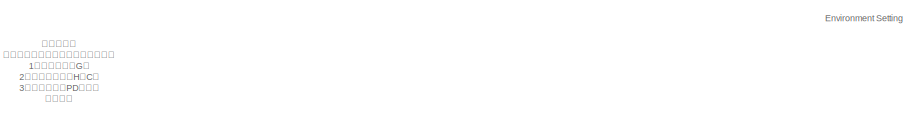
[diagram: root canvas - part 1/5, top left region]
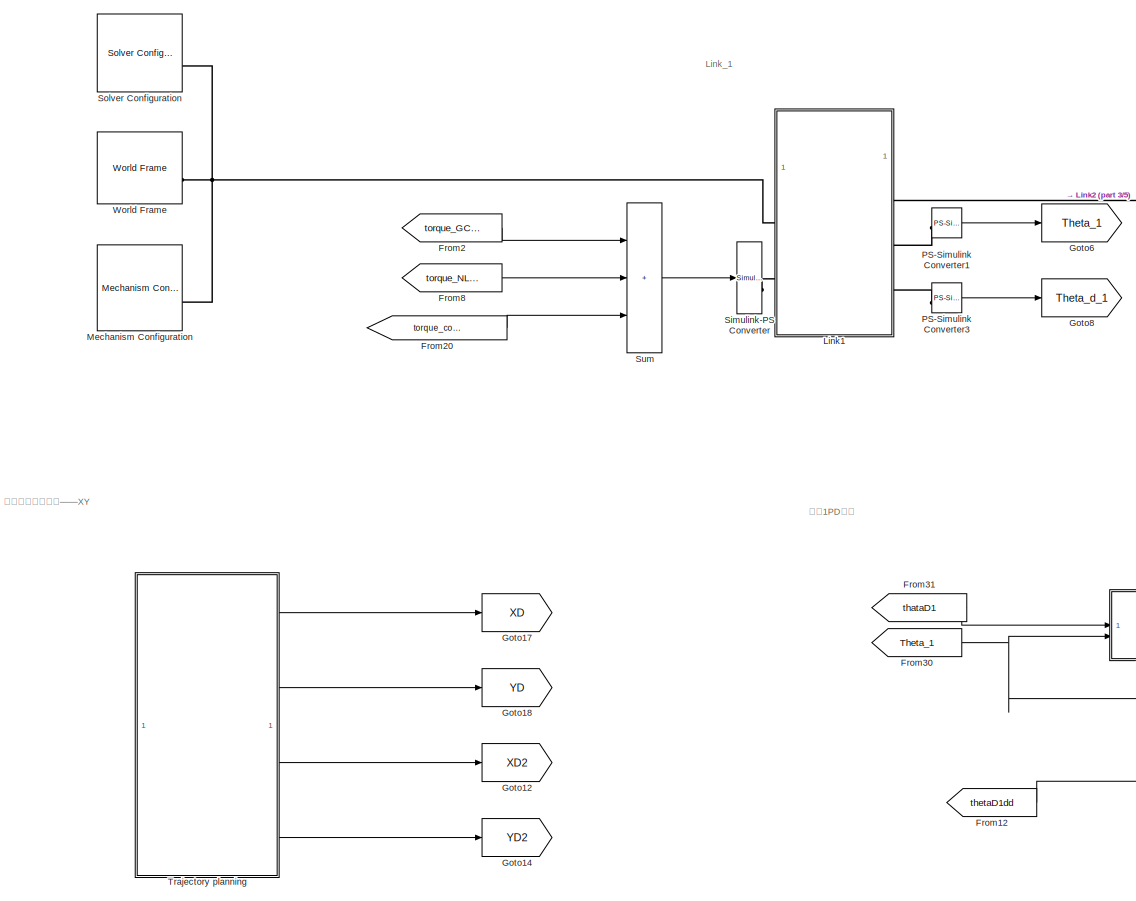
[diagram: root canvas - part 2/5, top center region]
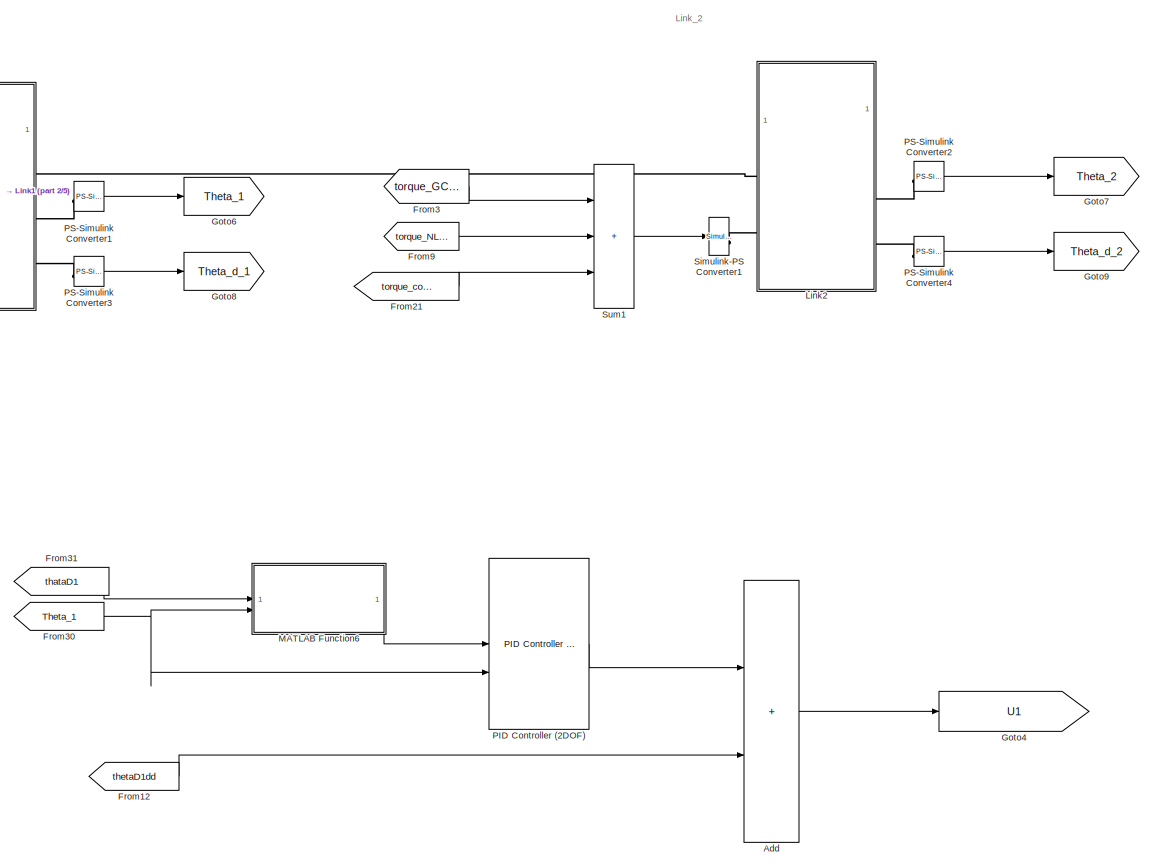
[diagram: root canvas - part 3/5, top right region]
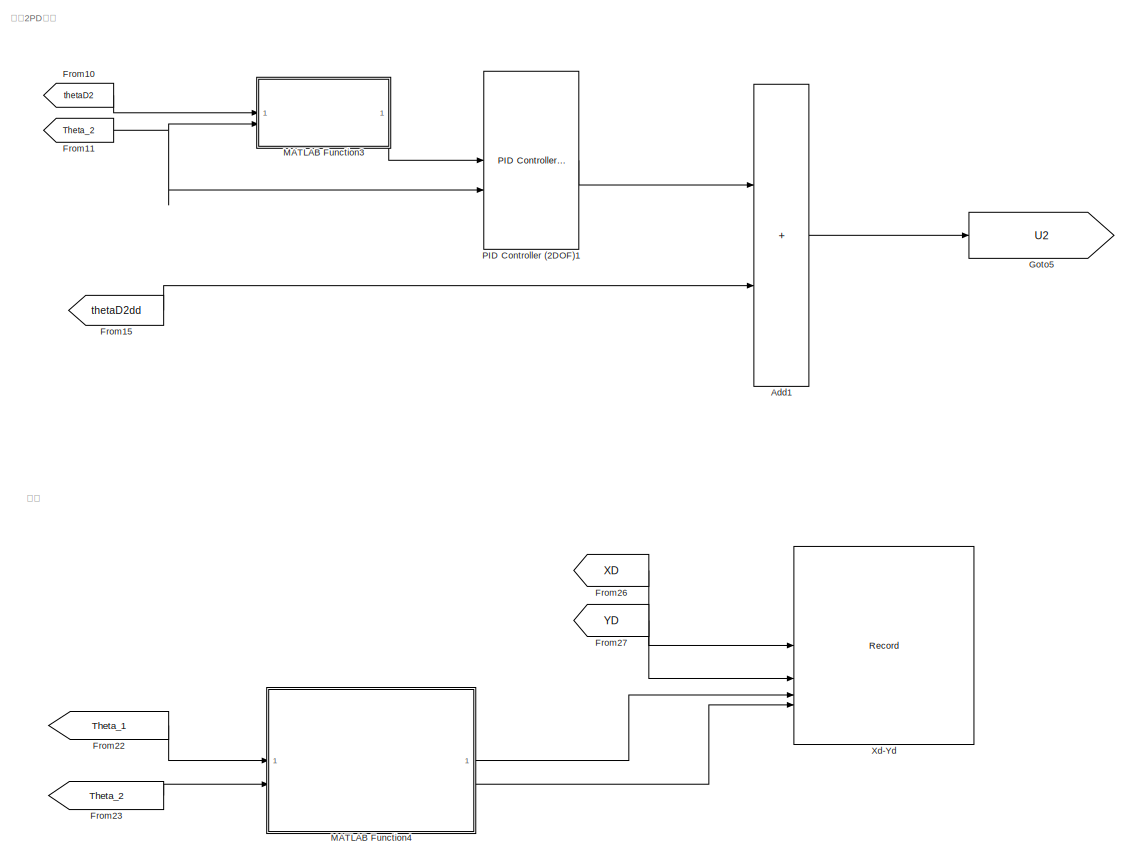
[diagram: root canvas - part 4/5, middle right region]
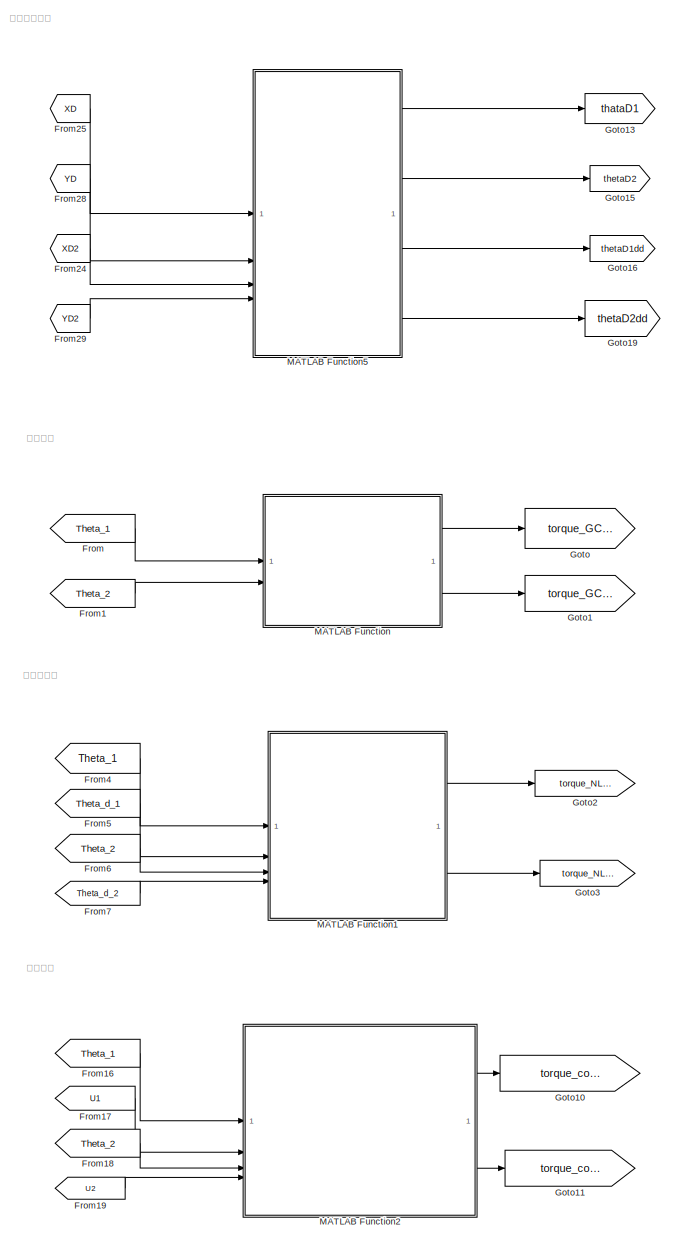
[diagram: root canvas - part 5/5, bottom center region]
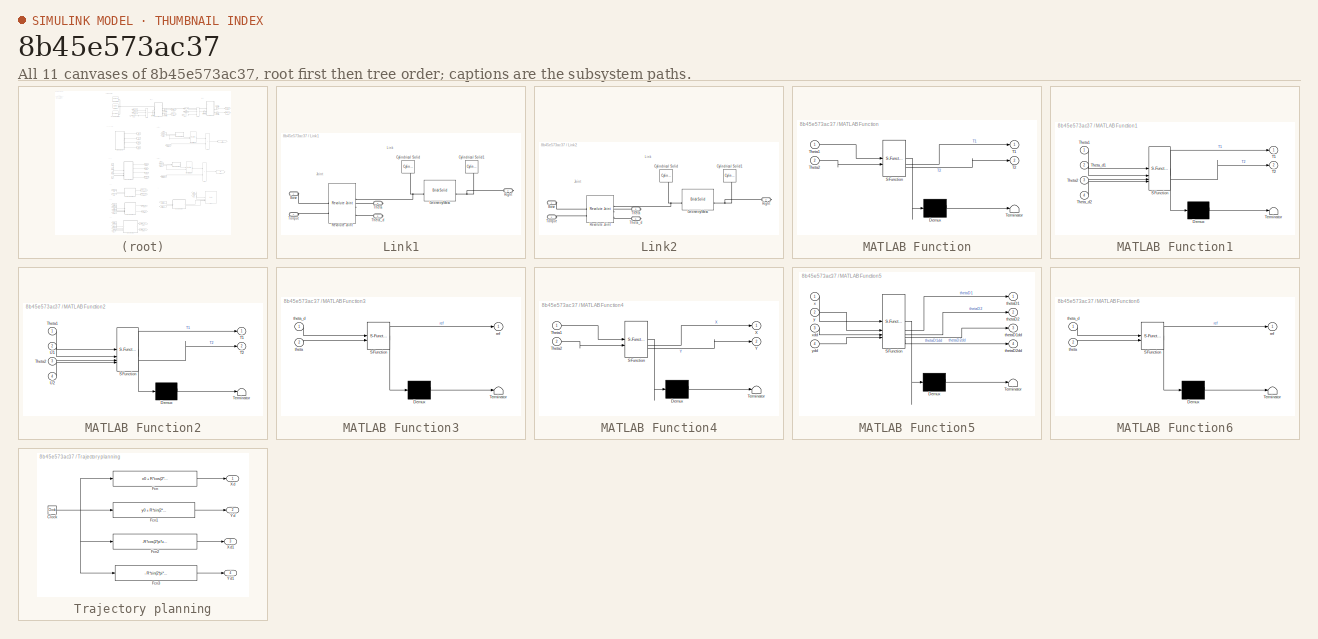
[diagram: thumbnail index - all 11 canvases of the model, root first then tree order]
MODEL slx_8b45e573ac37
KIND model
CONFIG AbsTol = auto
CONFIG EnableMultiTasking = off
CONFIG FixedStep = auto
CONFIG MaxStep = auto
CONFIG MinStep = auto
CONFIG RelTol = 1e-3
CONFIG SampleTimeConstraint = Unconstrained
CONFIG SolverName = VariableStepAuto
CONFIG StartTime = 0.0
CONFIG StopTime = 10
BLOCK [Sum] Add
  IconShape = rectangular
BLOCK [Sum] Add1
  IconShape = rectangular
BLOCK [From] From
  GotoTag = Theta_1
BLOCK [From] From1
  GotoTag = Theta_2
BLOCK [From] From10
  GotoTag = thetaD2
BLOCK [From] From11
  GotoTag = Theta_2
BLOCK [From] From12
  GotoTag = thetaD1dd
BLOCK [From] From15
  GotoTag = thetaD2dd
BLOCK [From] From16
  GotoTag = Theta_1
BLOCK [From] From17
  GotoTag = U1
BLOCK [From] From18
  GotoTag = Theta_2
BLOCK [From] From19
  GotoTag = U2
BLOCK [From] From2
  GotoTag = torque_GC_1
BLOCK [From] From20
  GotoTag = torque_controller_1
BLOCK [From] From21
  GotoTag = torque_controller_2
BLOCK [From] From22
  GotoTag = Theta_1
BLOCK [From] From23
  GotoTag = Theta_2
BLOCK [From] From24
  GotoTag = XD2
BLOCK [From] From25
  GotoTag = XD
BLOCK [From] From26
  GotoTag = XD
BLOCK [From] From27
  GotoTag = YD
BLOCK [From] From28
  GotoTag = YD
BLOCK [From] From29
  GotoTag = YD2
BLOCK [From] From3
  GotoTag = torque_GC_2
BLOCK [From] From30
  GotoTag = Theta_1
BLOCK [From] From31
  GotoTag = thataD1
BLOCK [From] From4
  GotoTag = Theta_1
BLOCK [From] From5
  GotoTag = Theta_d_1
BLOCK [From] From6
  GotoTag = Theta_2
BLOCK [From] From7
  GotoTag = Theta_d_2
BLOCK [From] From8
  GotoTag = torque_NL_1
BLOCK [From] From9
  GotoTag = torque_NL_2
BLOCK [Goto] Goto
  GotoTag = torque_GC_1
BLOCK [Goto] Goto1
  GotoTag = torque_GC_2
BLOCK [Goto] Goto10
  GotoTag = torque_controller_1
BLOCK [Goto] Goto11
  GotoTag = torque_controller_2
BLOCK [Goto] Goto12
  GotoTag = XD2
BLOCK [Goto] Goto13
  GotoTag = thataD1
BLOCK [Goto] Goto14
  GotoTag = YD2
BLOCK [Goto] Goto15
  GotoTag = thetaD2
BLOCK [Goto] Goto16
  GotoTag = thetaD1dd
BLOCK [Goto] Goto17
  GotoTag = XD
BLOCK [Goto] Goto18
  GotoTag = YD
BLOCK [Goto] Goto19
  GotoTag = thetaD2dd
BLOCK [Goto] Goto2
  GotoTag = torque_NL_1
BLOCK [Goto] Goto3
  GotoTag = torque_NL_2
BLOCK [Goto] Goto4
  GotoTag = U1
BLOCK [Goto] Goto5
  GotoTag = U2
BLOCK [Goto] Goto6
  GotoTag = Theta_1
BLOCK [Goto] Goto7
  GotoTag = Theta_2
BLOCK [Goto] Goto8
  GotoTag = Theta_d_1
BLOCK [Goto] Goto9
  GotoTag = Theta_d_2
BLOCK [SubSystem] Link1
BLOCK [PMIOPort] Link1/Base
  Side = Left
BLOCK [Reference] Link1/Cylindrical Solid  REF=sm_lib/Body Elements/Cylindrical Solid
  NameLocation = left
  SourceBlock = sm_lib/Body Elements/Cylindrical Solid
  SourceType = Cylindrical Solid
BLOCK [Reference] Link1/Cylindrical Solid1  REF=sm_lib/Body Elements/Cylindrical Solid
  NameLocation = left
  SourceBlock = sm_lib/Body Elements/Cylindrical Solid
  SourceType = Cylindrical Solid
BLOCK [Reference] Link1/Geometry//Mass  REF=sm_lib/Body Elements/Brick Solid
  SourceBlock = sm_lib/Body Elements/Brick Solid
  SourceType = Brick Solid
BLOCK [Reference] Link1/Revolute Joint  REF=sm_lib/Joints/Revolute Joint
  SourceBlock = sm_lib/Joints/Revolute Joint
  SourceType = Revolute Joint
BLOCK [PMIOPort] Link1/Right
  Port = 2
  Side = Right
BLOCK [PMIOPort] Link1/Theta
  Port = 3
  Side = Right
BLOCK [PMIOPort] Link1/Theta_d
  Port = 5
  Side = Right
BLOCK [PMIOPort] Link1/Torque
  Port = 4
  Side = Left
BLOCK [SubSystem] Link2
BLOCK [PMIOPort] Link2/Base
  Side = Left
BLOCK [Reference] Link2/Cylindrical Solid  REF=sm_lib/Body Elements/Cylindrical Solid
  NameLocation = left
  SourceBlock = sm_lib/Body Elements/Cylindrical Solid
  SourceType = Cylindrical Solid
BLOCK [Reference] Link2/Cylindrical Solid1  REF=sm_lib/Body Elements/Cylindrical Solid
  NameLocation = left
  SourceBlock = sm_lib/Body Elements/Cylindrical Solid
  SourceType = Cylindrical Solid
BLOCK [Reference] Link2/Geometry//Mass  REF=sm_lib/Body Elements/Brick Solid
  SourceBlock = sm_lib/Body Elements/Brick Solid
  SourceType = Brick Solid
BLOCK [Reference] Link2/Revolute Joint  REF=sm_lib/Joints/Revolute Joint
  SourceBlock = sm_lib/Joints/Revolute Joint
  SourceType = Revolute Joint
BLOCK [PMIOPort] Link2/Right
  Port = 2
  Side = Right
BLOCK [PMIOPort] Link2/Theta
  Port = 3
  Side = Right
BLOCK [PMIOPort] Link2/Theta_d
  Port = 5
  Side = Right
BLOCK [PMIOPort] Link2/Torque
  Port = 4
  Side = Left
BLOCK [SubSystem] MATLAB Function
  ErrorFcn = Stateflow.Translate.translate
  LibrarySourceBlock = simulink/User-Defined\nFunctions/MATLAB Function
  PermitHierarchicalResolution = ExplicitOnly
  SFBlockType = MATLAB Function
  TreatAsAtomicUnit = on
BLOCK [Demux] MATLAB Function/ Demux 
  Outputs = 1
BLOCK [S-Function] MATLAB Function/ SFunction 
  EnableBusSupport = on
  FunctionName = sf_sfun
  PortCounts = [2 3]
  SFcnIsStateOwnerBlock = off
  SFunctionDeploymentMode = off
  Tag = Stateflow S-Function 2
BLOCK [Terminator] MATLAB Function/ Terminator 
BLOCK [Outport] MATLAB Function/T1
BLOCK [Outport] MATLAB Function/T2
  Port = 2
BLOCK [Inport] MATLAB Function/Theta1
BLOCK [Inport] MATLAB Function/Theta2
  Port = 2
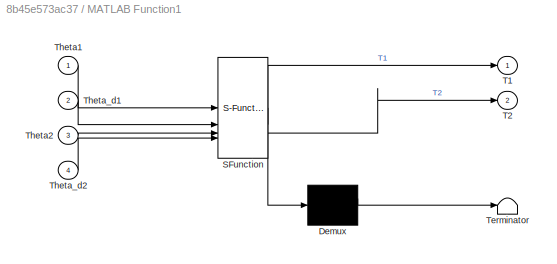
BLOCK [SubSystem] MATLAB Function1
  ErrorFcn = Stateflow.Translate.translate
  LibrarySourceBlock = simulink/User-Defined\nFunctions/MATLAB Function
  PermitHierarchicalResolution = ExplicitOnly
  SFBlockType = MATLAB Function
  TreatAsAtomicUnit = on
BLOCK [Demux] MATLAB Function1/ Demux 
  Outputs = 1
BLOCK [S-Function] MATLAB Function1/ SFunction 
  EnableBusSupport = on
  FunctionName = sf_sfun
  PortCounts = [4 3]
  SFcnIsStateOwnerBlock = off
  SFunctionDeploymentMode = off
  Tag = Stateflow S-Function 1
BLOCK [Terminator] MATLAB Function1/ Terminator 
BLOCK [Outport] MATLAB Function1/T1
BLOCK [Outport] MATLAB Function1/T2
  Port = 2
BLOCK [Inport] MATLAB Function1/Theta1
BLOCK [Inport] MATLAB Function1/Theta2
  Port = 3
BLOCK [Inport] MATLAB Function1/Theta_d1
  Port = 2
BLOCK [Inport] MATLAB Function1/Theta_d2
  Port = 4
BLOCK [SubSystem] MATLAB Function2
  ErrorFcn = Stateflow.Translate.translate
  LibrarySourceBlock = simulink/User-Defined\nFunctions/MATLAB Function
  PermitHierarchicalResolution = ExplicitOnly
  SFBlockType = MATLAB Function
  TreatAsAtomicUnit = on
BLOCK [Demux] MATLAB Function2/ Demux 
  Outputs = 1
BLOCK [S-Function] MATLAB Function2/ SFunction 
  EnableBusSupport = on
  FunctionName = sf_sfun
  PortCounts = [4 3]
  SFcnIsStateOwnerBlock = off
  SFunctionDeploymentMode = off
  Tag = Stateflow S-Function 3
BLOCK [Terminator] MATLAB Function2/ Terminator 
BLOCK [Outport] MATLAB Function2/T1
BLOCK [Outport] MATLAB Function2/T2
  Port = 2
BLOCK [Inport] MATLAB Function2/Theta1
BLOCK [Inport] MATLAB Function2/Theta2
  Port = 3
BLOCK [Inport] MATLAB Function2/U1
  Port = 2
BLOCK [Inport] MATLAB Function2/U2
  Port = 4
BLOCK [SubSystem] MATLAB Function3
  ErrorFcn = Stateflow.Translate.translate
  LibrarySourceBlock = simulink/User-Defined\nFunctions/MATLAB Function
  PermitHierarchicalResolution = ExplicitOnly
  SFBlockType = MATLAB Function
  TreatAsAtomicUnit = on
BLOCK [Demux] MATLAB Function3/ Demux 
  Outputs = 1
BLOCK [S-Function] MATLAB Function3/ SFunction 
  EnableBusSupport = on
  FunctionName = sf_sfun
  PortCounts = [2 2]
  SFcnIsStateOwnerBlock = off
  SFunctionDeploymentMode = off
  Tag = Stateflow S-Function 4
BLOCK [Terminator] MATLAB Function3/ Terminator 
BLOCK [Outport] MATLAB Function3/ref
BLOCK [Inport] MATLAB Function3/theta
  Port = 2
BLOCK [Inport] MATLAB Function3/theta_d
BLOCK [SubSystem] MATLAB Function4
  ErrorFcn = Stateflow.Translate.translate
  LibrarySourceBlock = simulink/User-Defined\nFunctions/MATLAB Function
  PermitHierarchicalResolution = ExplicitOnly
  SFBlockType = MATLAB Function
  TreatAsAtomicUnit = on
BLOCK [Demux] MATLAB Function4/ Demux 
  Outputs = 1
BLOCK [S-Function] MATLAB Function4/ SFunction 
  EnableBusSupport = on
  FunctionName = sf_sfun
  PortCounts = [2 3]
  SFcnIsStateOwnerBlock = off
  SFunctionDeploymentMode = off
  Tag = Stateflow S-Function 5
BLOCK [Terminator] MATLAB Function4/ Terminator 
BLOCK [Inport] MATLAB Function4/Theta1
BLOCK [Inport] MATLAB Function4/Theta2
  Port = 2
BLOCK [Outport] MATLAB Function4/X
BLOCK [Outport] MATLAB Function4/Y
  Port = 2
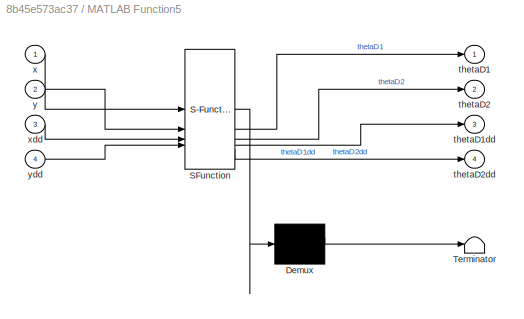
BLOCK [SubSystem] MATLAB Function5
  ErrorFcn = Stateflow.Translate.translate
  LibrarySourceBlock = simulink/User-Defined\nFunctions/MATLAB Function
  PermitHierarchicalResolution = ExplicitOnly
  SFBlockType = MATLAB Function
  TreatAsAtomicUnit = on
BLOCK [Demux] MATLAB Function5/ Demux 
  Outputs = 1
BLOCK [S-Function] MATLAB Function5/ SFunction 
  EnableBusSupport = on
  FunctionName = sf_sfun
  PortCounts = [4 5]
  SFcnIsStateOwnerBlock = off
  SFunctionDeploymentMode = off
  Tag = Stateflow S-Function 6
BLOCK [Terminator] MATLAB Function5/ Terminator 
BLOCK [Outport] MATLAB Function5/thetaD1
BLOCK [Outport] MATLAB Function5/thetaD1dd
  Port = 3
BLOCK [Outport] MATLAB Function5/thetaD2
  Port = 2
BLOCK [Outport] MATLAB Function5/thetaD2dd
  Port = 4
BLOCK [Inport] MATLAB Function5/x
BLOCK [Inport] MATLAB Function5/xdd
  Port = 3
BLOCK [Inport] MATLAB Function5/y
  Port = 2
BLOCK [Inport] MATLAB Function5/ydd
  Port = 4
BLOCK [SubSystem] MATLAB Function6
  ErrorFcn = Stateflow.Translate.translate
  LibrarySourceBlock = simulink/User-Defined\nFunctions/MATLAB Function
  PermitHierarchicalResolution = ExplicitOnly
  SFBlockType = MATLAB Function
  TreatAsAtomicUnit = on
BLOCK [Demux] MATLAB Function6/ Demux 
  Outputs = 1
BLOCK [S-Function] MATLAB Function6/ SFunction 
  EnableBusSupport = on
  FunctionName = sf_sfun
  PortCounts = [2 2]
  SFcnIsStateOwnerBlock = off
  SFunctionDeploymentMode = off
  Tag = Stateflow S-Function 7
BLOCK [Terminator] MATLAB Function6/ Terminator 
BLOCK [Outport] MATLAB Function6/ref
BLOCK [Inport] MATLAB Function6/theta
  Port = 2
BLOCK [Inport] MATLAB Function6/theta_d
BLOCK [Reference] Mechanism Configuration  REF=sm_lib/Utilities/Mechanism
Configuration
  SourceBlock = sm_lib/Utilities/Mechanism\nConfiguration
  SourceType = Mechanism\nConfiguration
BLOCK [Reference] PID Controller (2DOF)  REF=slpidlib/PID Controller (2DOF)
  LibrarySourceBlock = simulink/Continuous/PID Controller (2DOF)
  SourceBlock = slpidlib/PID Controller (2DOF)
  SourceType = PID 2dof
BLOCK [Reference] PID Controller (2DOF)1  REF=slpidlib/PID Controller (2DOF)
  LibrarySourceBlock = simulink/Continuous/PID Controller (2DOF)
  SourceBlock = slpidlib/PID Controller (2DOF)
  SourceType = PID 2dof
BLOCK [Reference] PS-Simulink Converter1  REF=nesl_utility/PS-Simulink
Converter
  SourceBlock = nesl_utility/PS-Simulink\nConverter
  SourceType = PS-Simulink\nConverter
BLOCK [Reference] PS-Simulink Converter2  REF=nesl_utility/PS-Simulink
Converter
  SourceBlock = nesl_utility/PS-Simulink\nConverter
  SourceType = PS-Simulink\nConverter
BLOCK [Reference] PS-Simulink Converter3  REF=nesl_utility/PS-Simulink
Converter
  SourceBlock = nesl_utility/PS-Simulink\nConverter
  SourceType = PS-Simulink\nConverter
BLOCK [Reference] PS-Simulink Converter4  REF=nesl_utility/PS-Simulink
Converter
  SourceBlock = nesl_utility/PS-Simulink\nConverter
  SourceType = PS-Simulink\nConverter
BLOCK [Reference] Simulink-PS Converter  REF=nesl_utility/Simulink-PS
Converter
  SourceBlock = nesl_utility/Simulink-PS\nConverter
  SourceType = Simulink-PS\nConverter
BLOCK [Reference] Simulink-PS Converter1  REF=nesl_utility/Simulink-PS
Converter
  SourceBlock = nesl_utility/Simulink-PS\nConverter
  SourceType = Simulink-PS\nConverter
BLOCK [Reference] Solver Configuration  REF=nesl_utility/Solver
Configuration
  SourceBlock = nesl_utility/Solver\nConfiguration
  SourceType = Solver\nConfiguration
BLOCK [Sum] Sum
  IconShape = rectangular
  Inputs = +++
BLOCK [Sum] Sum1
  IconShape = rectangular
  Inputs = +++
BLOCK [SubSystem] Trajectory planning
BLOCK [Clock] Trajectory planning/Clock
BLOCK [Fcn] Trajectory planning/Fcn
  Expr = x0 + R*cos(2*pi*u/T)
BLOCK [Fcn] Trajectory planning/Fcn1
  Expr = y0 + R*sin(2*pi*u/T )
BLOCK [Fcn] Trajectory planning/Fcn2
  Expr = -R*cos(2*pi*u/T)*(2*pi/5)^2
BLOCK [Fcn] Trajectory planning/Fcn3
  Expr = - R*sin(2*pi*u/T )*(2*pi/5)^2
BLOCK [Outport] Trajectory planning/Xd
  VectorParamsAs1DForOutWhenUnconnected = off
BLOCK [Outport] Trajectory planning/Xd1
  Port = 3
  VectorParamsAs1DForOutWhenUnconnected = off
BLOCK [Outport] Trajectory planning/Yd
  Port = 2
  VectorParamsAs1DForOutWhenUnconnected = off
BLOCK [Outport] Trajectory planning/Yd1
  Port = 4
  VectorParamsAs1DForOutWhenUnconnected = off
BLOCK [Reference] World Frame  REF=sm_lib/Frames and
Transforms/World Frame
  SourceBlock = sm_lib/Frames and\nTransforms/World Frame
  SourceType = World Frame
BLOCK [Record] Xd-Yd
  CompatibilityTag = XY
  FileSettingsInternal = {"entries":[{"content":{"excelSettings":{"content":{},"type":"Streamout.ExcelSettings"}},"type":"Streamout.FileSettingStorage","uuid":"82810fa3-4e5f-4e08-a9dc-30900cd7e1b1"}],"packageUris":["http://schema.mathworks.com/mf0/streamout_blocks/R2020a"],"version":"1.0"}
  Layout = [1 1]
  SignalsInternal = {"entries":[{"content":{"signals":[{"content":{"blockPath":["EXE_CTRL_2DOF_pengcheng/Xd-Yd"],"dimensions":[1],"domain":"EXE_CTRL_2DOF_pengcheng/Xd-Yd","lineColor":"#64d413","plots":[1],"port":1,"sid":[""],"signalID":7506,"signalName":"From26"},"type":"RecordBlkView.Signal","uuid":"eec5582d-a25e-4252-8a64-dc88bf628d29"},{"content":{"blockPath":["EXE_CTRL_2DOF_pengcheng/Xd-Yd"],"dimensions":[1],"dom...<+979ch>
  VisualizationBindings = {"xyplotplugin":{"info":[{"series":[{"bindingParametersList":[{"parameter":"X-Axis","signalID":7506,"signalName":"From26"},{"parameter":"Y-Axis","signalID":7510,"signalName":"From27"}],"seriesID":26476},{"bindingParametersList":[{"parameter":"X-Axis","signalID":7514,"signalName":"MATLAB Function4:1"},{"parameter":"Y-Axis","signalID":7518,"signalName":"MATLAB Function4:2"}],"seriesID":64026}],"subp...<+12ch>
  st = -1
ANNOTATION (root): 作业内容： 将上述两连杆机器人补全如下内容： 1）重力补偿（G） 2）非线性补偿（H，C） 3）独立关节的PD控制器 并实现： 4）关节的末端跟踪一个圆（已给出） 其中连杆的质量、惯量和长度已在模型中给出，同学们不要更改。 连杆关节的初始角度和初始角速度都已给出，如果有必要，可以更改。
ANNOTATION (root): Environment Setting
ANNOTATION (root): Link_1
ANNOTATION (root): Link_2
ANNOTATION (root): 主体控制
ANNOTATION (root): 关节1PD控制
ANNOTATION (root): 关节2PD控制
ANNOTATION (root): 轨迹分解：圆轨迹——XY
ANNOTATION (root): 输出
ANNOTATION (root): 逆运动学求解
ANNOTATION (root): 重力补偿
ANNOTATION (root): 非线性补偿
ANNOTATION Link1: Joint
ANNOTATION Link1: Link
ANNOTATION Link2: Joint
ANNOTATION Link2: Link
LINE Add1:1 -> Goto5:1
LINE Add:1 -> Goto4:1
LINE From10:1 -> MATLAB Function3:1
NET From11:1 -> MATLAB Function3:2, PID Controller (2DOF)1:2
LINE From12:1 -> Add:2
LINE From15:1 -> Add1:2
LINE From16:1 -> MATLAB Function2:1
LINE From17:1 -> MATLAB Function2:2
LINE From18:1 -> MATLAB Function2:3
LINE From19:1 -> MATLAB Function2:4
LINE From1:1 -> MATLAB Function:2
LINE From20:1 -> Sum:3
LINE From21:1 -> Sum1:3
LINE From22:1 -> MATLAB Function4:1
LINE From23:1 -> MATLAB Function4:2
LINE From24:1 -> MATLAB Function5:3
LINE From25:1 -> MATLAB Function5:1
LINE From26:1 -> Xd-Yd:1
LINE From27:1 -> Xd-Yd:2
LINE From28:1 -> MATLAB Function5:2
LINE From29:1 -> MATLAB Function5:4
LINE From2:1 -> Sum:1
NET From30:1 -> MATLAB Function6:2, PID Controller (2DOF):2
LINE From31:1 -> MATLAB Function6:1
LINE From3:1 -> Sum1:1
LINE From4:1 -> MATLAB Function1:1
LINE From5:1 -> MATLAB Function1:2
LINE From6:1 -> MATLAB Function1:3
LINE From7:1 -> MATLAB Function1:4
LINE From8:1 -> Sum:2
LINE From9:1 -> Sum1:2
LINE From:1 -> MATLAB Function:1
LINE MATLAB Function1:1 -> Goto2:1
LINE MATLAB Function1:2 -> Goto3:1
LINE MATLAB Function2:1 -> Goto10:1
LINE MATLAB Function2:2 -> Goto11:1
LINE MATLAB Function3:1 -> PID Controller (2DOF)1:1
LINE MATLAB Function4:1 -> Xd-Yd:3
LINE MATLAB Function4:2 -> Xd-Yd:4
LINE MATLAB Function5:1 -> Goto13:1
LINE MATLAB Function5:2 -> Goto15:1
LINE MATLAB Function5:3 -> Goto16:1
LINE MATLAB Function5:4 -> Goto19:1
LINE MATLAB Function6:1 -> PID Controller (2DOF):1
LINE MATLAB Function:1 -> Goto:1
LINE MATLAB Function:2 -> Goto1:1
LINE PID Controller (2DOF)1:1 -> Add1:1
LINE PID Controller (2DOF):1 -> Add:1
LINE PS-Simulink Converter1:1 -> Goto6:1
LINE PS-Simulink Converter2:1 -> Goto7:1
LINE PS-Simulink Converter3:1 -> Goto8:1
LINE PS-Simulink Converter4:1 -> Goto9:1
LINE Sum1:1 -> Simulink-PS Converter1:1
LINE Sum:1 -> Simulink-PS Converter:1
NET Trajectory planning/Clock:1 -> Trajectory planning/Fcn1:1, Trajectory planning/Fcn2:1, Trajectory planning/Fcn3:1, Trajectory planning/Fcn:1
LINE Trajectory planning/Fcn1:1 -> Trajectory planning/Yd:1
LINE Trajectory planning/Fcn2:1 -> Trajectory planning/Xd1:1
LINE Trajectory planning/Fcn3:1 -> Trajectory planning/Yd1:1
LINE Trajectory planning/Fcn:1 -> Trajectory planning/Xd:1
LINE Trajectory planning:1 -> Goto17:1
LINE Trajectory planning:2 -> Goto18:1
LINE Trajectory planning:3 -> Goto12:1
LINE Trajectory planning:4 -> Goto14:1
PLINE Link1/Base:RConn1 -- Link1/Revolute Joint:LConn1
PNET net1: Link1/Cylindrical Solid1:RConn1 -- Link1/Geometry//Mass:RConn1 -- Link1/Right:RConn1
PNET net2: Link1/Cylindrical Solid:RConn1 -- Link1/Geometry//Mass:LConn1 -- Link1/Revolute Joint:RConn1
PLINE Link1/Revolute Joint:LConn2 -- Link1/Torque:RConn1
PLINE Link1/Revolute Joint:RConn2 -- Link1/Theta:RConn1
PLINE Link1/Revolute Joint:RConn3 -- Link1/Theta_d:RConn1
PNET net3: Link1:LConn1 -- Mechanism Configuration:RConn1 -- Solver Configuration:RConn1 -- World Frame:RConn1
PLINE Link1:LConn2 -- Simulink-PS Converter:RConn1
PLINE Link1:RConn1 -- Link2:LConn1
PLINE Link1:RConn2 -- PS-Simulink Converter1:LConn1
PLINE Link1:RConn3 -- PS-Simulink Converter3:LConn1
PLINE Link2/Base:RConn1 -- Link2/Revolute Joint:LConn1
PNET net4: Link2/Cylindrical Solid1:RConn1 -- Link2/Geometry//Mass:RConn1 -- Link2/Right:RConn1
PNET net5: Link2/Cylindrical Solid:RConn1 -- Link2/Geometry//Mass:LConn1 -- Link2/Revolute Joint:RConn1
PLINE Link2/Revolute Joint:LConn2 -- Link2/Torque:RConn1
PLINE Link2/Revolute Joint:RConn2 -- Link2/Theta:RConn1
PLINE Link2/Revolute Joint:RConn3 -- Link2/Theta_d:RConn1
PLINE Link2:LConn2 -- Simulink-PS Converter1:RConn1
PLINE Link2:RConn2 -- PS-Simulink Converter2:LConn1
PLINE Link2:RConn3 -- PS-Simulink Converter4:LConn1
note: NET lines group one-source signal fan-out (src -> all destinations, sorted); 1:1 wires keep LINE; PNET lines group multi-terminal physical nets as a canonical sorted terminal list (undirected conserving connections); 2-terminal nets keep the pairwise PLINE form
CHART MATLAB Function1 states=1 transitions=1
  STATE_LABEL 'eML_blk_kernel()'
  STATE_LABEL 'SCRIPT:\nfunction [T1, T2] = NLComp(Theta1, Theta_d1, Theta2, Theta_d2)\n\ng = 9.80665;\n\nm1 = 1.0;\nL1 = 0.25;\nLc1 = 0.125;\n\nm2 = 1.0;\nL2 = 0.25;\nLc2 = 0.125;\n\nT1 = -2 * Theta_d2 * Theta_d1 * L1 * Lc2 * m2 * sin(Theta2) - 2 * (Theta_d1 + Theta_d2) * Theta_d2 * L1 * Lc2 * m2 * sin(Theta2);\nT2 = 2 * m2 * L1 * Lc2 * sin(Theta2) * Theta_d1^2;\n'
CHART MATLAB Function states=1 transitions=1
  STATE_LABEL 'eML_blk_kernel()'
  STATE_LABEL 'SCRIPT:\nfunction [T1,T2] = GravityComp(Theta1, Theta2)\n\ng = 9.80665;\n\nm1 = 1.0;\nL1 = 0.25;\nLc1 = 0.125;\n\nm2 = 1.0;\nL2 = 0.25;\nLc2 = 0.125;\n\nT2 = m2 * g * Lc2 * cos(Theta1 + Theta2);\nT1 = T2 + (m1 * Lc1 + m2 * L1) *cos(Theta1) * g; \n\n'
CHART MATLAB Function2 states=1 transitions=1
  STATE_LABEL 'eML_blk_kernel()'
  STATE_LABEL 'SCRIPT:\nfunction [T1, T2] = MassComp(Theta1, U1, Theta2, U2)\n\ng = 9.80665;\n\nm1 = 1.0;\nL1 = 0.25;\nLc1 = 0.125;\nIc1 = 0.020833;\n\nm2 = 1.0;\nL2 = 0.25;\nLc2 = 0.125;\nIc2 = 0.020833;\n\nT1 = (m2*L1^2 + 2*m2*cos(Theta2)*L1*Lc2 + m1*Lc1^2 + m2*Lc2^2 + Ic1 + Ic2) * U1 + (m2*Lc2^2 + L1*m2*cos(Theta2)*Lc2 + Ic2) * U2;\nT2 = (m2*Lc2^2 + L1*m2*cos(Theta2)*Lc2 + Ic2) * U1 + (m2*Lc2^2 + Ic2) * U2;'
CHART MATLAB Function3 states=1 transitions=1
  STATE_LABEL 'eML_blk_kernel()'
  STATE_LABEL 'SCRIPT:\nfunction ref = AdaptPdRef(theta_d, theta)\n\twhile (theta_d - theta) >= pi\n\t\ttheta_d = theta_d - 2 * pi;\n\tend\n\twhile (theta_d - theta) <= -pi\n\t\ttheta_d = theta_d + 2 * pi;\n\tend\nref = theta_d; \n'
CHART MATLAB Function4 states=1 transitions=1
  STATE_LABEL 'eML_blk_kernel()'
  STATE_LABEL 'SCRIPT:\nfunction [X, Y] = Forwardkinematics(Theta1,Theta2)\n\nl1 = 0.25; \nl2 = 0.25;\n\nT10 = [cos(Theta1), -sin(Theta1), 0, l1*cos(Theta1);\n       sin(Theta1), cos(Theta1),  0, l1*sin(Theta1);\n       0,          0,             1,      0;\n       0,          0,             0,       1];\n\nT21 = [cos(Theta2), -sin(Theta2), 0, l2*cos(Theta2);\n       sin(Theta2), cos(Theta2),  0, l2*sin(Theta2);\n       0,  ...<+126ch>'
CHART MATLAB Function5 states=1 transitions=1
  STATE_LABEL 'eML_blk_kernel()'
  STATE_LABEL 'SCRIPT:\nfunction [thetaD1,thetaD2,thetaD1dd,thetaD2dd] = inverse_kinematics(x,y,xdd,ydd)\n\nl1 = 0.25;\nl2 = 0.25;\n\nbeta = atan2(y,x);\ntemp = (x^2 +y^2+l1^2-l2^2)/(2*l1*sqrt(x^2+y^2));\nphi = acos(temp);\n\nthetaD1 = beta - phi;\nthetaD2 = 2*phi;\n\nJ_a_inv = [-cos(thetaD1 + thetaD2)/(l1*cos(thetaD1 + thetaD2)*sin(thetaD1) - l1*sin(thetaD1 + thetaD2)*cos(thetaD1)), -sin(thetaD1 + thetaD2)/(l1*cos(thetaD1 +...<+417ch>'
CHART MATLAB Function6 states=1 transitions=1
  STATE_LABEL 'eML_blk_kernel()'
  STATE_LABEL 'SCRIPT:\nfunction ref = AdaptPdRef(theta_d, theta)\n\twhile (theta_d - theta) >= pi\n\t\ttheta_d = theta_d - 2 * pi;\n\tend\n\twhile (theta_d - theta) <= -pi\n\t\ttheta_d = theta_d + 2 * pi;\n\tend\nref = theta_d; \n'
CHART  states=0 transitions=0
CHART  states=0 transitions=0
CHART  states=0 transitions=0
CHART  states=0 transitions=0
CHART  states=0 transitions=0
CHART  states=0 transitions=0
CHART  states=0 transitions=0
